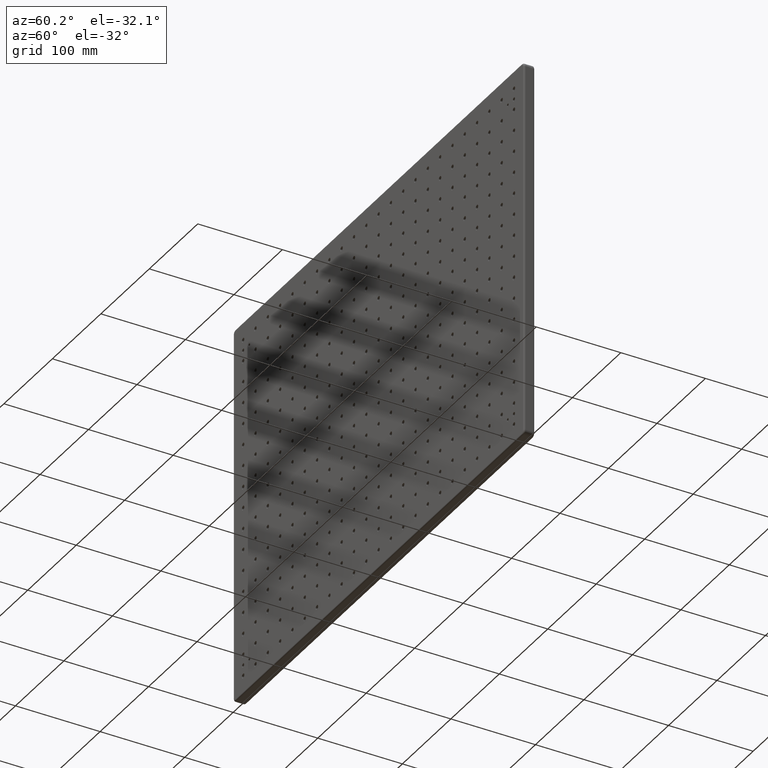
[diagram: clean part render]
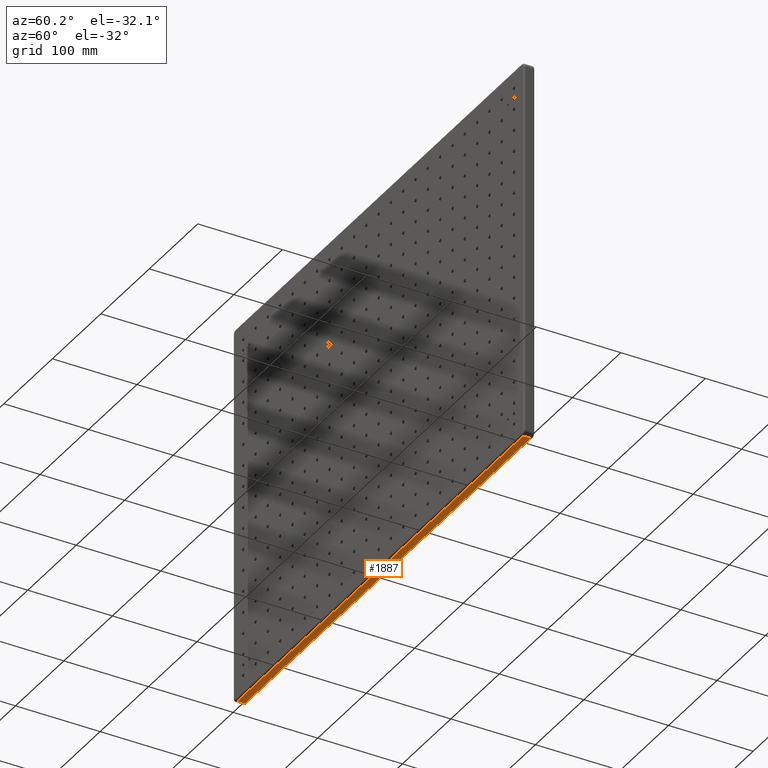
[diagram: same view with one face highlighted and labeled with its STEP entity id]
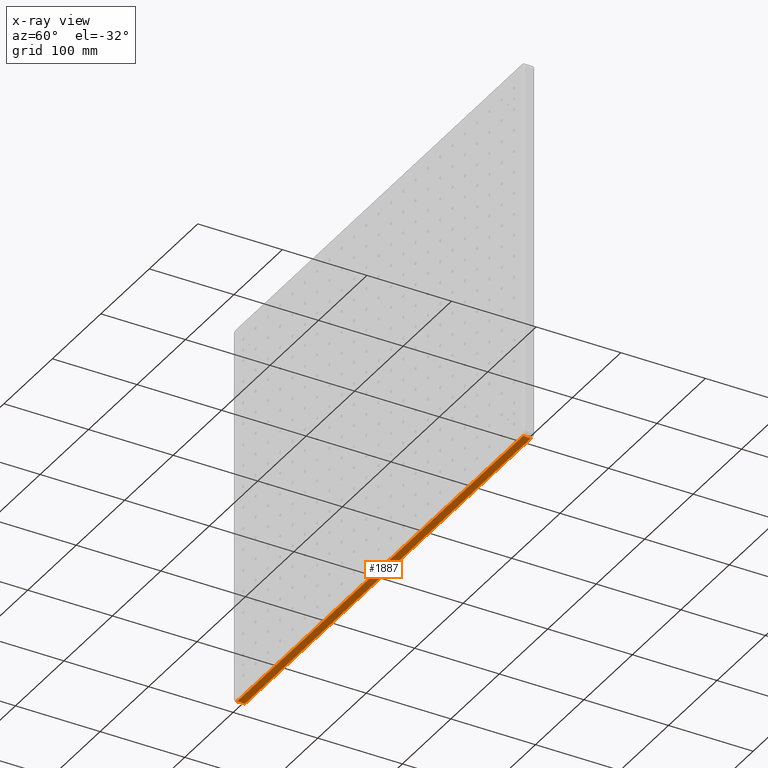
[diagram: x-ray of the same camera — body ghosted, the highlighted face saturated]
A machine part, auxiliary view. The second image highlights one B-rep face of the part: STEP entity #1887.
The next image is the same camera in x-ray: the body ghosted, the highlighted face saturated — about 0% of this face is hidden behind the body in this view.
In plain terms, the highlighted planar face has unit normal (0, 0, 1).
Its self-contained STEP definition (entity closure, byte-faithful):
#348 = CARTESIAN_POINT ( 'NONE',  ( 295.0000000000000000, 13.00000000000000000, -225.0000000000000300 ) ) ;
#857 = EDGE_CURVE ( 'NONE', #24906, #6890, #9593, .T. ) ;
#884 = CARTESIAN_POINT ( 'NONE',  ( -295.0000000000000000, 2.000000000000000000, -225.0000000000000300 ) ) ;
#904 = DIRECTION ( 'NONE',  ( 1.000000000000000000, 0.0000000000000000000, -0.0000000000000000000 ) ) ;
#1198 = PLANE ( 'NONE',  #11327 ) ;
#1284 = EDGE_CURVE ( 'NONE', #6890, #4157, #29159, .T. ) ;
#1360 = EDGE_CURVE ( 'NONE', #4157, #12360, #13607, .T. ) ;
#1887 = ADVANCED_FACE ( 'NONE', ( #4790 ), #1198, .F. ) ;
#1978 = DIRECTION ( 'NONE',  ( -0.0000000000000000000, -1.000000000000000000, -0.0000000000000000000 ) ) ;
#2525 = DIRECTION ( 'NONE',  ( -0.0000000000000000000, -1.000000000000000000, -0.0000000000000000000 ) ) ;
#3699 = CARTESIAN_POINT ( 'NONE',  ( -295.0000000000000000, 2.000000000000003600, -225.0000000000000300 ) ) ;
#3766 = ORIENTED_EDGE ( 'NONE', *, *, #1284, .T. ) ;
#3800 = CARTESIAN_POINT ( 'NONE',  ( 295.0000000000000000, 11.00000000000000000, -225.0000000000000300 ) ) ;
#4157 = VERTEX_POINT ( 'NONE', #25464 ) ;
#4790 = FACE_OUTER_BOUND ( 'NONE', #29370, .T. ) ;
#5820 = CARTESIAN_POINT ( 'NONE',  ( -295.0000000000000000, 11.00000000000000000, -225.0000000000000300 ) ) ;
#6890 = VERTEX_POINT ( 'NONE', #3800 ) ;
#7496 = DIRECTION ( 'NONE',  ( 1.000000000000000000, -0.0000000000000000000, -0.0000000000000000000 ) ) ;
#9593 = LINE ( 'NONE', #21617, #13258 ) ;
#10511 = DIRECTION ( 'NONE',  ( 0.0000000000000000000, 0.0000000000000000000, 1.000000000000000000 ) ) ;
#11120 = ORIENTED_EDGE ( 'NONE', *, *, #857, .T. ) ;
#11327 = AXIS2_PLACEMENT_3D ( 'NONE', #19668, #10511, #904 ) ;
#11376 = VECTOR ( 'NONE', #2525, 1000.000000000000000 ) ;
#12360 = VERTEX_POINT ( 'NONE', #3699 ) ;
#13258 = VECTOR ( 'NONE', #7496, 1000.000000000000000 ) ;
#13607 = LINE ( 'NONE', #884, #29881 ) ;
#13672 = LINE ( 'NONE', #30201, #25862 ) ;
#17243 = DIRECTION ( 'NONE',  ( -1.000000000000000000, 0.0000000000000000000, 0.0000000000000000000 ) ) ;
#19668 = CARTESIAN_POINT ( 'NONE',  ( -295.0000000000000000, 13.00000000000000000, -225.0000000000000300 ) ) ;
#21617 = CARTESIAN_POINT ( 'NONE',  ( 295.0000000000000000, 11.00000000000000000, -225.0000000000000300 ) ) ;
#22226 = ORIENTED_EDGE ( 'NONE', *, *, #1360, .T. ) ;
#24906 = VERTEX_POINT ( 'NONE', #5820 ) ;
#25464 = CARTESIAN_POINT ( 'NONE',  ( 295.0000000000000000, 2.000000000000001800, -225.0000000000000300 ) ) ;
#25862 = VECTOR ( 'NONE', #1978, 1000.000000000000000 ) ;
#27718 = EDGE_CURVE ( 'NONE', #24906, #12360, #13672, .T. ) ;
#29159 = LINE ( 'NONE', #348, #11376 ) ;
#29370 = EDGE_LOOP ( 'NONE', ( #3766, #22226, #30256, #11120 ) ) ;
#29881 = VECTOR ( 'NONE', #17243, 1000.000000000000000 ) ;
#30201 = CARTESIAN_POINT ( 'NONE',  ( -295.0000000000000000, 13.00000000000000000, -225.0000000000000300 ) ) ;
#30256 = ORIENTED_EDGE ( 'NONE', *, *, #27718, .F. ) ;